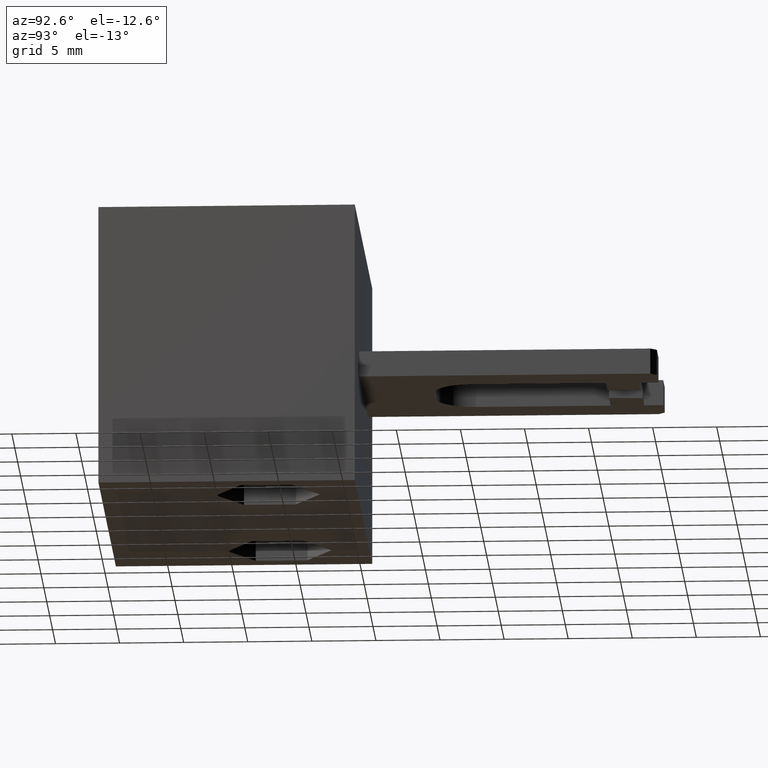
[diagram: clean part render]
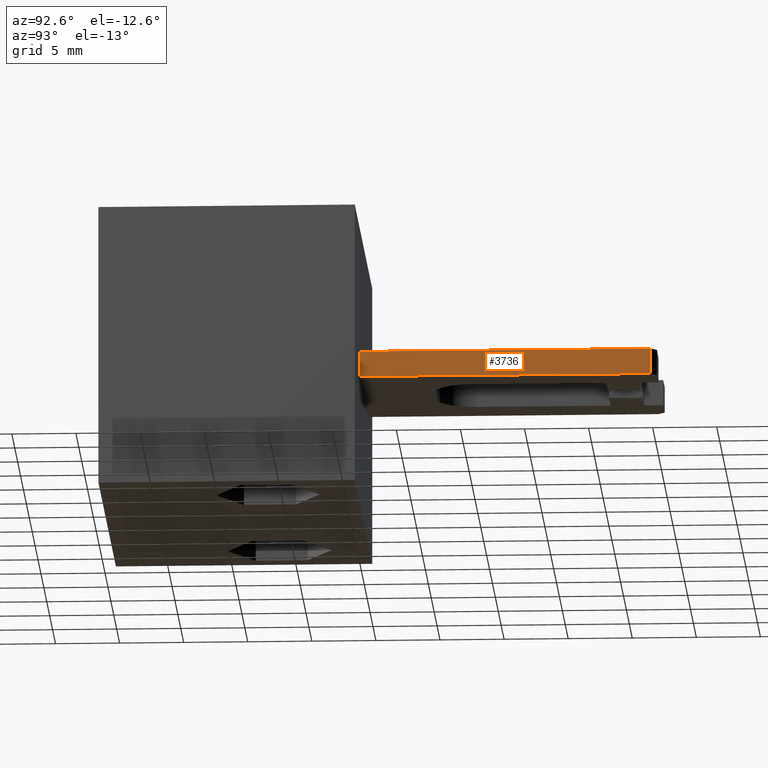
[diagram: same view with one face highlighted and labeled with its STEP entity id]
A machine part, auxiliary view. The second image highlights one B-rep face of the part: STEP entity #3736.
In plain terms, the highlighted planar face has unit normal (1, 0, 0).
Its self-contained STEP definition (entity closure, byte-faithful):
#273=FACE_OUTER_BOUND('',#484,.T.);
#484=EDGE_LOOP('',(#2483,#2484,#2485,#2486));
#723=LINE('',#4835,#1136);
#724=LINE('',#4838,#1137);
#725=LINE('',#4840,#1138);
#726=LINE('',#4841,#1139);
#1136=VECTOR('',#4110,2.);
#1137=VECTOR('',#4113,22.6999986916799);
#1138=VECTOR('',#4114,22.6999986916799);
#1139=VECTOR('',#4115,2.);
#1546=VERTEX_POINT('',#4828);
#1549=VERTEX_POINT('',#4833);
#1550=VERTEX_POINT('',#4837);
#1551=VERTEX_POINT('',#4839);
#1923=EDGE_CURVE('',#1546,#1549,#723,.T.);
#1924=EDGE_CURVE('',#1550,#1546,#724,.T.);
#1925=EDGE_CURVE('',#1551,#1549,#725,.T.);
#1926=EDGE_CURVE('',#1550,#1551,#726,.T.);
#2483=ORIENTED_EDGE('',*,*,#1924,.T.);
#2484=ORIENTED_EDGE('',*,*,#1923,.T.);
#2485=ORIENTED_EDGE('',*,*,#1925,.F.);
#2486=ORIENTED_EDGE('',*,*,#1926,.F.);
#3598=PLANE('',#3950);
#3736=ADVANCED_FACE('',(#273),#3598,.T.);
#3950=AXIS2_PLACEMENT_3D('',#4836,#4111,#4112);
#4110=DIRECTION('',(0.,0.,1.));
#4111=DIRECTION('center_axis',(1.,0.,0.));
#4112=DIRECTION('ref_axis',(0.,1.,0.));
#4113=DIRECTION('',(0.,1.,0.));
#4114=DIRECTION('',(0.,1.,0.));
#4115=DIRECTION('',(0.,0.,1.));
#4828=CARTESIAN_POINT('',(15.7835910085003,23.482735698627,0.));
#4833=CARTESIAN_POINT('',(15.7835910085003,23.482735698627,2.));
#4835=CARTESIAN_POINT('',(15.7835910085003,23.482735698627,0.));
#4836=CARTESIAN_POINT('Origin',(15.7835910085003,0.782737006947173,0.));
#4837=CARTESIAN_POINT('',(15.7835910085003,0.782737006947173,0.));
#4838=CARTESIAN_POINT('',(15.7835910085003,0.782737006947173,0.));
#4839=CARTESIAN_POINT('',(15.7835910085003,0.782737006947172,2.));
#4840=CARTESIAN_POINT('',(15.7835910085003,0.782737006947173,2.));
#4841=CARTESIAN_POINT('',(15.7835910085003,0.782737006947173,0.));